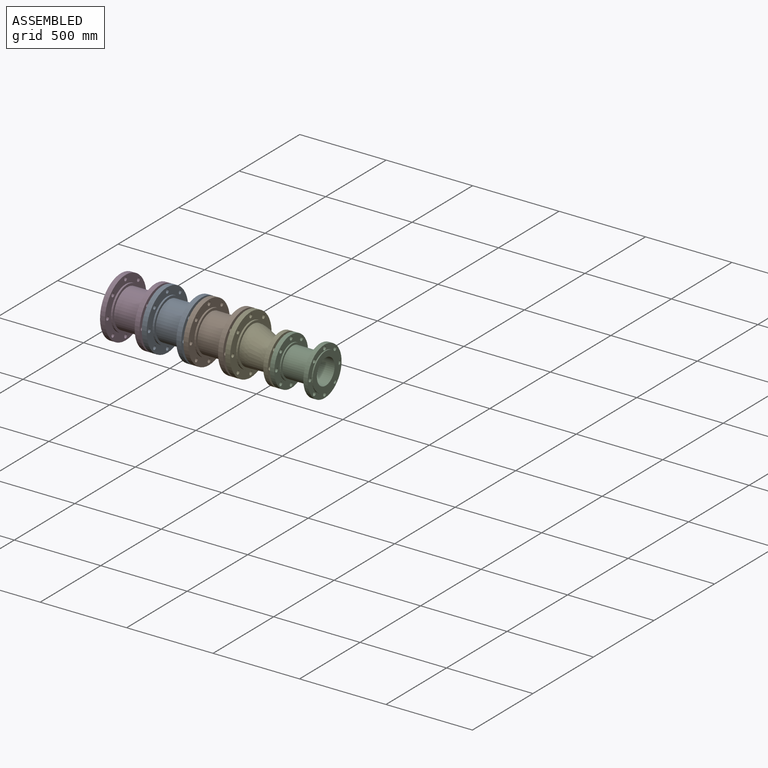
[diagram: assembled view]
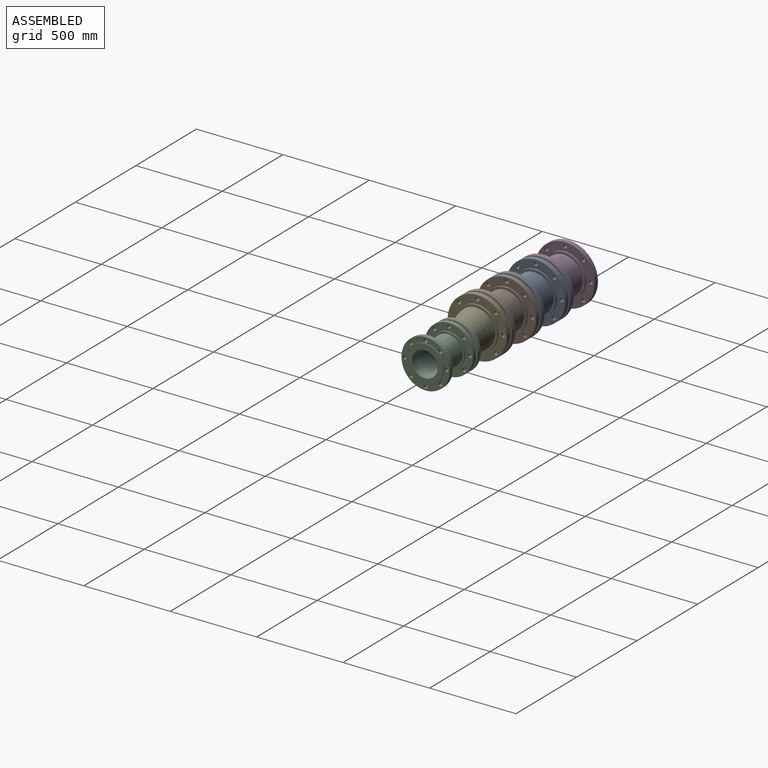
[diagram: assembled view, second angle]
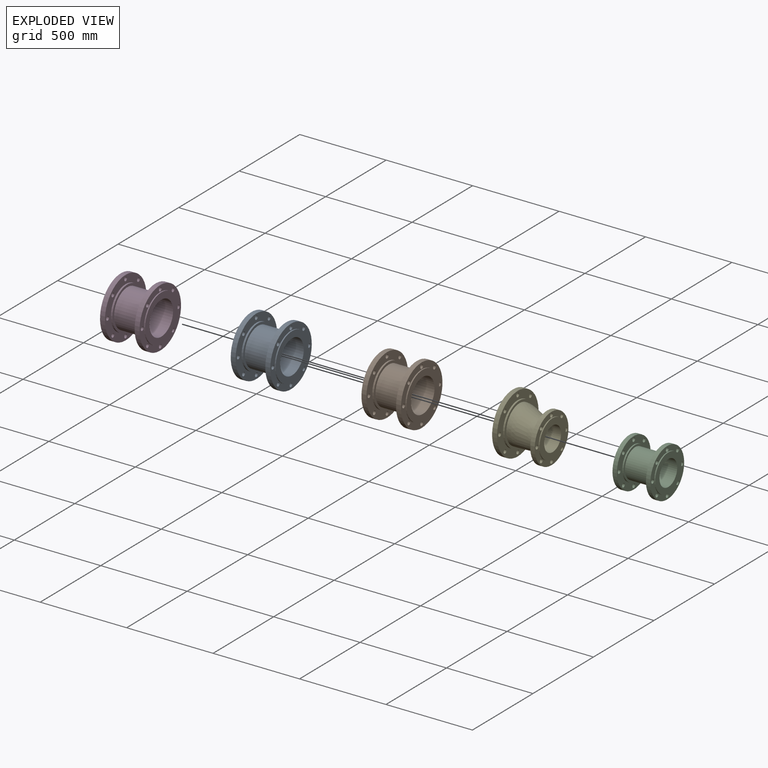
[diagram: exploded view]
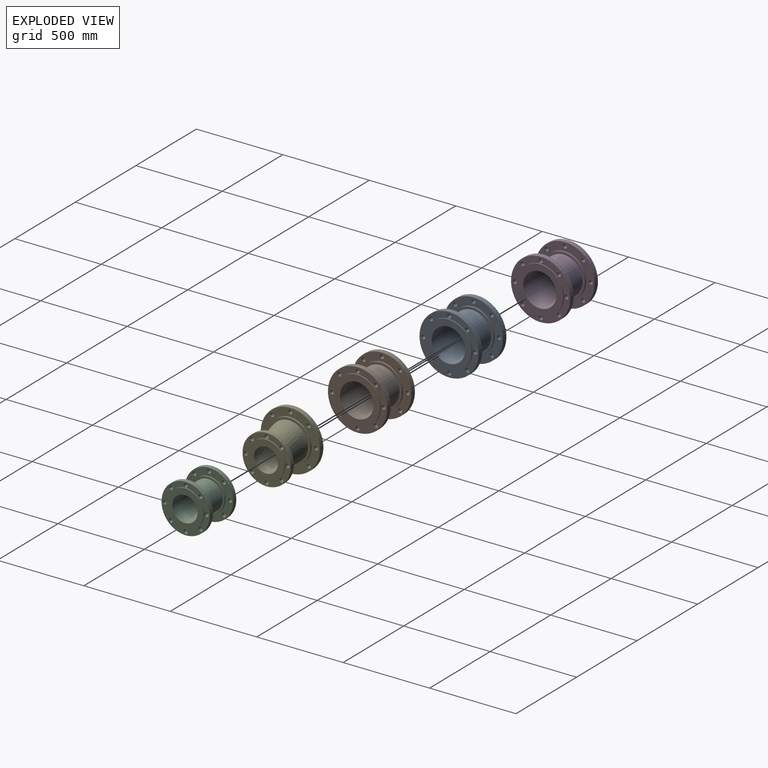
[diagram: exploded view, second angle]
ASSEMBLY  parts=5 mates=11
PART A: 32 faces, bbox 241.3x342.9x342.9 mm
  f0: plane 342.9x342.9mm, normal (1,0,0), area 32059.6mm2, adj f1,f15,f24,f25,f26,f27,f28,f29
  f1: cylinder r=171.45mm len=342.9mm, axis (-1,0,0), area 30645.7mm2, adj f0,f2
  f2: plane 342.9x342.9mm, normal (-1,0,0), area 41630.4mm2, adj f1,f3,f24,f25,f26,f27,f28,f29
  f3: cylinder r=123.06mm len=246.13mm, axis (-1,0,0), area 7463.2mm2, adj f2,f4
  f4: plane 246.13x246.13mm, normal (-1,0,0), area 9883.6mm2, adj f3,f5
  f5: cylinder r=109.54mm len=219.08mm, axis (-1,0,0), area 104888.4mm2, adj f4,f6
  f6: plane 246.13x246.13mm, normal (1,0,0), area 9883.6mm2, adj f5,f7
  f7: cylinder r=123.06mm len=246.13mm, axis (-1,0,0), area 7463.2mm2, adj f6,f8
  f8: plane 342.9x342.9mm, normal (1,0,0), area 41630.4mm2, adj f7,f9,f16,f17,f18,f19,f20,f21
  f9: cylinder r=171.45mm len=342.9mm, axis (-1,0,0), area 30645.7mm2, adj f8,f10
  f10: plane 342.9x342.9mm, normal (-1,0,0), area 32059.6mm2, adj f9,f11,f16,f17,f18,f19,f20,f21
  f11: cylinder r=134.87mm len=269.75mm, axis (-1,0,0), area 5381.2mm2, adj f10,f12
  f12: plane 269.75x269.75mm, normal (-1,0,0), area 27688.4mm2, adj f11,f13
  f13: cylinder r=96.84mm len=241.3mm, axis (-1,0,0), area 146818.5mm2, adj f12,f14
  f14: plane 269.75x269.75mm, normal (1,0,0), area 27688.4mm2, adj f13,f15
  f15: cylinder r=134.87mm len=269.75mm, axis (-1,0,0), area 5381.2mm2, adj f0,f14
  f16: cylinder r=11.18mm len=28.45mm, axis (1,0,0), area 1997.6mm2, adj f8,f10
  f17: cylinder r=11.18mm len=28.45mm, axis (1,0,0), area 1997.6mm2, adj f8,f10
  f18: cylinder r=11.18mm len=28.45mm, axis (1,0,0), area 1997.6mm2, adj f8,f10
  f19: cylinder r=11.18mm len=28.45mm, axis (1,0,0), area 1997.6mm2, adj f8,f10
  f20: cylinder r=11.18mm len=28.45mm, axis (1,0,0), area 1997.6mm2, adj f8,f10
  f21: cylinder r=11.18mm len=28.45mm, axis (1,0,0), area 1997.6mm2, adj f8,f10
  f22: cylinder r=11.18mm len=28.45mm, axis (1,0,0), area 1997.6mm2, adj f8,f10
  f23: cylinder r=11.18mm len=28.45mm, axis (1,0,0), area 1997.6mm2, adj f8,f10
  f24: cylinder r=11.18mm len=28.45mm, axis (1,0,0), area 1997.6mm2, adj f0,f2
  f25: cylinder r=11.18mm len=28.45mm, axis (1,0,0), area 1997.6mm2, adj f0,f2
  f26: cylinder r=11.18mm len=28.45mm, axis (1,0,0), area 1997.6mm2, adj f0,f2
  f27: cylinder r=11.18mm len=28.45mm, axis (1,0,0), area 1997.6mm2, adj f0,f2
  f28: cylinder r=11.18mm len=28.45mm, axis (1,0,0), area 1997.6mm2, adj f0,f2
  f29: cylinder r=11.18mm len=28.45mm, axis (1,0,0), area 1997.6mm2, adj f0,f2
  f30: cylinder r=11.18mm len=28.45mm, axis (1,0,0), area 1997.6mm2, adj f0,f2
  f31: cylinder r=11.18mm len=28.45mm, axis (1,0,0), area 1997.6mm2, adj f0,f2
PART B: same geometry as A
PART C: 32 faces, bbox 231.6x279.4x279.4 mm
  f0: plane 279.4x279.4mm, normal (1,0,0), area 21562.8mm2, adj f1,f15,f24,f25,f26,f27,f28,f29
  f1: cylinder r=139.7mm len=279.4mm, axis (-1,0,0), area 22295.1mm2, adj f0,f2
  f2: plane 279.4x279.4mm, normal (-1,0,0), area 29517.9mm2, adj f1,f3,f24,f25,f26,f27,f28,f29
  f3: cylinder r=95.5mm len=191.01mm, axis (-1,0,0), area 4724.9mm2, adj f2,f4
  f4: plane 191.01x191.01mm, normal (-1,0,0), area 6413.5mm2, adj f3,f5
  f5: cylinder r=84.14mm len=168.28mm, axis (-1,0,0), area 80568.9mm2, adj f4,f6
  f6: plane 191.01x191.01mm, normal (1,0,0), area 6413.5mm2, adj f5,f7
  f7: cylinder r=95.5mm len=191.01mm, axis (-1,0,0), area 4724.9mm2, adj f6,f8
  f8: plane 279.4x279.4mm, normal (1,0,0), area 29517.9mm2, adj f7,f9,f16,f17,f18,f19,f20,f21
  f9: cylinder r=139.7mm len=279.4mm, axis (-1,0,0), area 22295.1mm2, adj f8,f10
  f10: plane 279.4x279.4mm, normal (-1,0,0), area 21562.8mm2, adj f9,f11,f16,f17,f18,f19,f20,f21
  f11: cylinder r=107.95mm len=215.9mm, axis (-1,0,0), area 4307mm2, adj f10,f12
  f12: plane 215.9x215.9mm, normal (-1,0,0), area 19791.3mm2, adj f11,f13
  f13: cylinder r=73.17mm len=231.65mm, axis (-1,0,0), area 106493.9mm2, adj f12,f14
  f14: plane 215.9x215.9mm, normal (1,0,0), area 19791.3mm2, adj f13,f15
  f15: cylinder r=107.95mm len=215.9mm, axis (-1,0,0), area 4307mm2, adj f0,f14
  f16: cylinder r=11.18mm len=25.4mm, axis (1,0,0), area 1783.6mm2, adj f8,f10
  f17: cylinder r=11.18mm len=25.4mm, axis (1,0,0), area 1783.6mm2, adj f8,f10
  f18: cylinder r=11.18mm len=25.4mm, axis (1,0,0), area 1783.6mm2, adj f8,f10
  f19: cylinder r=11.18mm len=25.4mm, axis (1,0,0), area 1783.6mm2, adj f8,f10
  f20: cylinder r=11.18mm len=25.4mm, axis (1,0,0), area 1783.6mm2, adj f8,f10
  f21: cylinder r=11.18mm len=25.4mm, axis (1,0,0), area 1783.6mm2, adj f8,f10
  f22: cylinder r=11.18mm len=25.4mm, axis (1,0,0), area 1783.6mm2, adj f8,f10
  f23: cylinder r=11.18mm len=25.4mm, axis (1,0,0), area 1783.6mm2, adj f8,f10
  f24: cylinder r=11.18mm len=25.4mm, axis (1,0,0), area 1783.6mm2, adj f0,f2
  f25: cylinder r=11.18mm len=25.4mm, axis (1,0,0), area 1783.6mm2, adj f0,f2
  f26: cylinder r=11.18mm len=25.4mm, axis (1,0,0), area 1783.6mm2, adj f0,f2
  f27: cylinder r=11.18mm len=25.4mm, axis (1,0,0), area 1783.6mm2, adj f0,f2
  f28: cylinder r=11.18mm len=25.4mm, axis (1,0,0), area 1783.6mm2, adj f0,f2
  f29: cylinder r=11.18mm len=25.4mm, axis (1,0,0), area 1783.6mm2, adj f0,f2
  f30: cylinder r=11.18mm len=25.4mm, axis (1,0,0), area 1783.6mm2, adj f0,f2
  f31: cylinder r=11.18mm len=25.4mm, axis (1,0,0), area 1783.6mm2, adj f0,f2
PART D: same geometry as A
PART E: 34 faces, bbox 236.5x342.9x342.9 mm
  f0: plane 246.13x246.13mm, normal (1,0,0), area 9886.4mm2, adj f7,f16
  f1: plane 342.9x342.9mm, normal (1,0,0), area 41630.4mm2, adj f2,f7,f8,f9,f10,f11,f12,f13
  f2: cylinder r=171.45mm len=342.9mm, axis (-1,0,0), area 30645.7mm2, adj f1,f3
  f3: plane 342.9x342.9mm, normal (-1,0,0), area 32059.6mm2, adj f2,f4,f8,f9,f10,f11,f12,f13
  f4: cylinder r=134.87mm len=269.75mm, axis (-1,0,0), area 5381.2mm2, adj f3,f5
  f5: plane 269.75x269.75mm, normal (-1,0,0), area 27688.4mm2, adj f4,f6
  f6: cylinder r=96.84mm len=193.68mm, axis (-1,0,0), area 27045.5mm2, adj f5,f17
  f7: cylinder r=123.06mm len=246.13mm, axis (-1,0,0), area 7463.2mm2, adj f0,f1
  f8: cylinder r=11.18mm len=28.45mm, axis (-1,0,0), area 1997.6mm2, adj f1,f3
  f9: cylinder r=11.18mm len=28.45mm, axis (-1,0,0), area 1997.6mm2, adj f1,f3
  f10: cylinder r=11.18mm len=28.45mm, axis (-1,0,0), area 1997.6mm2, adj f1,f3
  f11: cylinder r=11.18mm len=28.45mm, axis (-1,0,0), area 1997.6mm2, adj f1,f3
  f12: cylinder r=11.18mm len=28.45mm, axis (-1,0,0), area 1997.6mm2, adj f1,f3
  f13: cylinder r=11.18mm len=28.45mm, axis (-1,0,0), area 1997.6mm2, adj f1,f3
  f14: cylinder r=11.18mm len=28.45mm, axis (-1,0,0), area 1997.6mm2, adj f1,f3
  f15: cylinder r=11.18mm len=28.45mm, axis (-1,0,0), area 1997.6mm2, adj f1,f3
  f16: bspline ~219.08x219.08mm, area 94973.8mm2, adj f0,f18
  f17: bspline ~193.68x193.68mm, area 81912mm2, adj f6,f21
  f18: plane 191.01x191.01mm, normal (-1,0,0), area 6416.5mm2, adj f16,f20
  f19: plane 279.4x279.4mm, normal (-1,0,0), area 29517.9mm2, adj f20,f25,f26,f27,f28,f29,f30,f31
  f20: cylinder r=95.5mm len=191.01mm, axis (-1,0,0), area 4724.9mm2, adj f18,f19
  f21: cylinder r=69.88mm len=139.75mm, axis (-1,0,0), area 17396.5mm2, adj f17,f22
  f22: plane 215.9x215.9mm, normal (1,0,0), area 21270.6mm2, adj f21,f23
  f23: cylinder r=107.95mm len=215.9mm, axis (-1,0,0), area 4307mm2, adj f22,f24
  f24: plane 279.4x279.4mm, normal (1,0,0), area 21562.8mm2, adj f23,f25,f26,f27,f28,f29,f30,f31
  f25: cylinder r=139.7mm len=279.4mm, axis (-1,0,0), area 22295.1mm2, adj f19,f24
  f26: cylinder r=11.18mm len=25.4mm, axis (-1,0,0), area 1783.6mm2, adj f19,f24
  f27: cylinder r=11.18mm len=25.4mm, axis (-1,0,0), area 1783.6mm2, adj f19,f24
  f28: cylinder r=11.18mm len=25.4mm, axis (-1,0,0), area 1783.6mm2, adj f19,f24
  f29: cylinder r=11.18mm len=25.4mm, axis (-1,0,0), area 1783.6mm2, adj f19,f24
  f30: cylinder r=11.18mm len=25.4mm, axis (-1,0,0), area 1783.6mm2, adj f19,f24
  f31: cylinder r=11.18mm len=25.4mm, axis (-1,0,0), area 1783.6mm2, adj f19,f24
  f32: cylinder r=11.18mm len=25.4mm, axis (-1,0,0), area 1783.6mm2, adj f19,f24
  f33: cylinder r=11.18mm len=25.4mm, axis (-1,0,0), area 1783.6mm2, adj f19,f24
PLACE A rot(axis=(-1,0,0),45deg) t=(-1000.59,102.49,-67.88)mm
PLACE B t=(-759.29,102.49,-67.88)mm
PLACE C rot(axis=(-1,0,0),45deg) t=(-286.34,102.49,-93.28)mm
PLACE D rot(axis=(1,0,0),45deg) t=(-1241.89,102.49,-67.88)mm
PLACE E t=(-594.19,102.49,-67.88)mm fixed
MATE cylindrical C.f22 <-> E.f33  axis (1,0,0) through (-370.41,102.49,27.37)mm
MATE cylindrical B.f1 <-> E.f2  axis (-1,0,0) through (-638.64,102.49,-67.88)mm
MATE cylindrical B.f1 <-> A.f1  axis (-1,0,0) through (-879.94,102.49,-67.88)mm
MATE slider A.f1 <-> D.f1  axis (-1,0,0) through (-1121.24,102.49,-67.88)mm
MATE planar B.f1 <-> A.f1  axis (-1,0,0) through (-879.94,102.49,-67.88)mm
MATE cylindrical E.f20 <-> C.f1  axis (-1,0,0) through (-402.16,102.49,-93.28)mm
MATE planar C.f1 <-> E.f20  axis (-1,0,0) through (-402.16,102.49,-93.28)mm
MATE cylindrical E.f14 <-> B.f16  axis (1,0,0) through (-603.84,208,37.64)mm
MATE planar B.f1 <-> E.f2  axis (1,0,0) through (-638.64,102.49,-67.88)mm
MATE planar D.f1 <-> A.f1  axis (1,0,0) through (-1121.24,102.49,-67.88)mm
MATE cylindrical B.f16 <-> A.f23  axis (1,0,0) through (-845.14,208,37.64)mm
